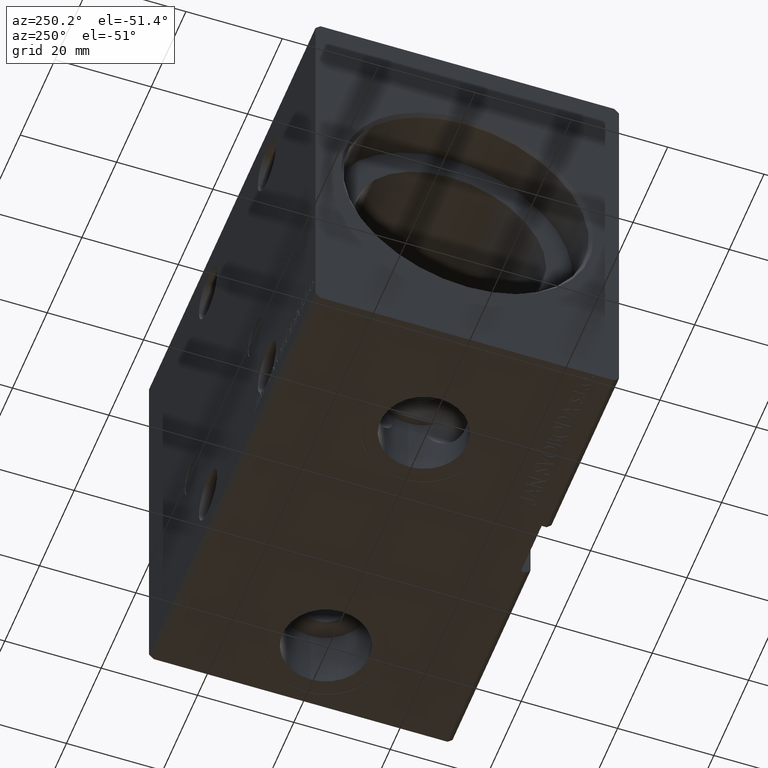
[diagram: clean part render]
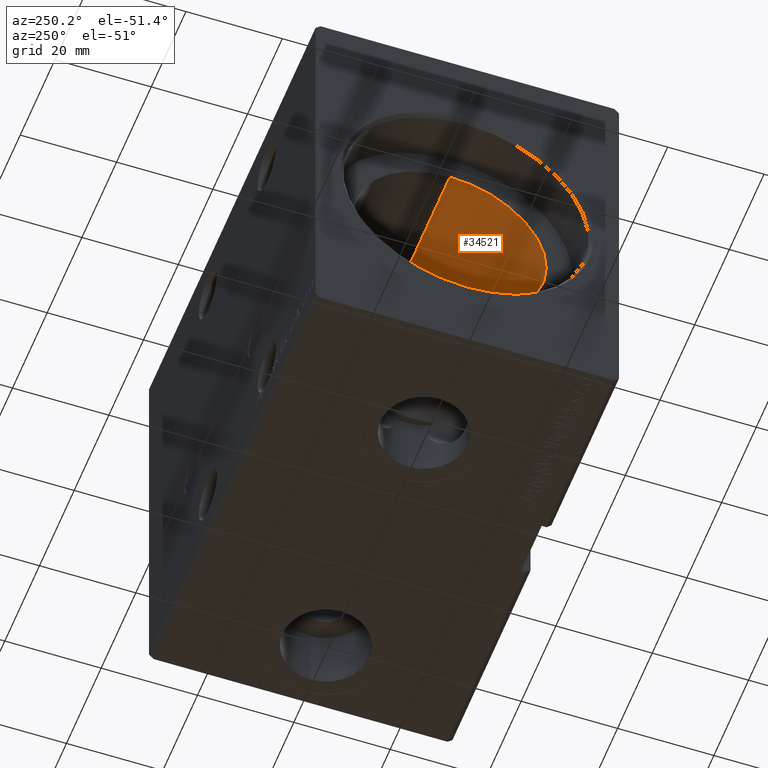
[diagram: same view with one face highlighted and labeled with its STEP entity id]
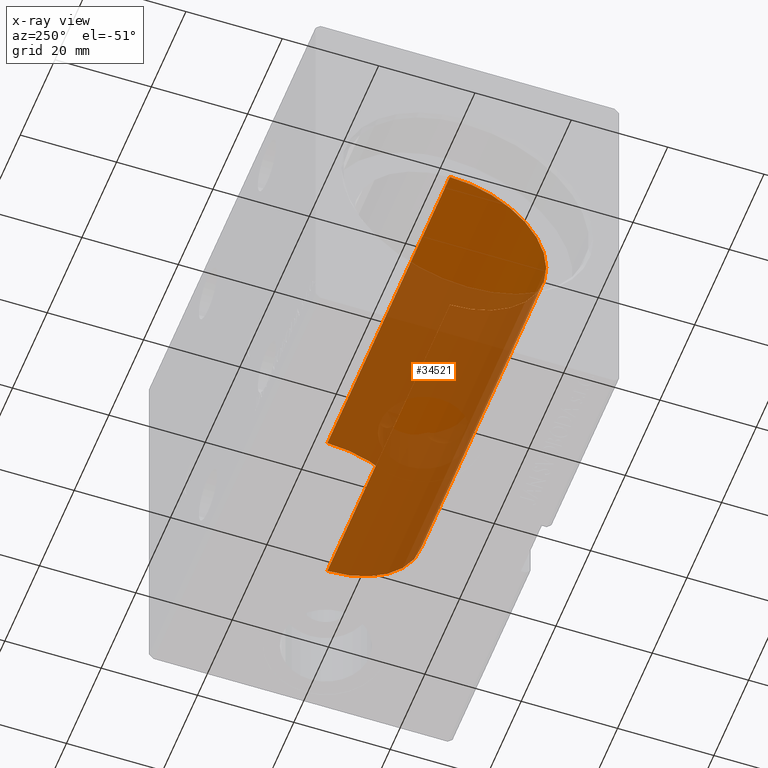
[diagram: x-ray of the same camera — body ghosted, the highlighted face saturated]
A machine part, auxiliary view. The second image highlights one B-rep face of the part: STEP entity #34521.
The next image is the same camera in x-ray: the body ghosted, the highlighted face saturated — about 72% of this face is hidden behind the body in this view.
In plain terms, the highlighted cylindrical surface (partial cylindrical patch) has radius 20 mm, axis along (-1, -0, -0).
Its self-contained STEP definition (entity closure, byte-faithful):
#56 = VECTOR ( 'NONE', #18173, 1000.000000000000000 ) ;
#1644 = CARTESIAN_POINT ( 'NONE',  ( 9.999999999999994671, 0.000000000000000000, 20.00000000000000000 ) ) ;
#2475 = VECTOR ( 'NONE', #5090, 1000.000000000000000 ) ;
#3161 = VERTEX_POINT ( 'NONE', #31922 ) ;
#3589 = DIRECTION ( 'NONE',  ( 0.000000000000000000, 0.000000000000000000, 1.000000000000000000 ) ) ;
#3800 = CIRCLE ( 'NONE', #36202, 20.00000000000000000 ) ;
#5090 = DIRECTION ( 'NONE',  ( -1.000000000000000000, -0.000000000000000000, -0.000000000000000000 ) ) ;
#5919 = FACE_OUTER_BOUND ( 'NONE', #35445, .T. ) ;
#6036 = VERTEX_POINT ( 'NONE', #6403 ) ;
#6403 = CARTESIAN_POINT ( 'NONE',  ( 80.70000000000000284, 2.449293598294706513E-15, -20.00000000000000000 ) ) ;
#7241 = DIRECTION ( 'NONE',  ( -1.000000000000000000, 0.000000000000000000, 0.000000000000000000 ) ) ;
#8202 = LINE ( 'NONE', #10876, #2475 ) ;
#10592 = CARTESIAN_POINT ( 'NONE',  ( 80.70000000000000284, 0.000000000000000000, 0.000000000000000000 ) ) ;
#10876 = CARTESIAN_POINT ( 'NONE',  ( 80.70000000000000284, 2.449293598294706513E-15, -20.00000000000000000 ) ) ;
#12933 = EDGE_CURVE ( 'NONE', #15475, #37934, #3800, .T. ) ;
#15475 = VERTEX_POINT ( 'NONE', #26141 ) ;
#17210 = EDGE_CURVE ( 'NONE', #6036, #15475, #8202, .T. ) ;
#18173 = DIRECTION ( 'NONE',  ( -1.000000000000000000, -0.000000000000000000, -0.000000000000000000 ) ) ;
#18755 = DIRECTION ( 'NONE',  ( -1.000000000000000000, -0.000000000000000000, -0.000000000000000000 ) ) ;
#25763 = EDGE_CURVE ( 'NONE', #6036, #3161, #32408, .T. ) ;
#26135 = DIRECTION ( 'NONE',  ( -1.000000000000000000, 0.000000000000000000, 0.000000000000000000 ) ) ;
#26141 = CARTESIAN_POINT ( 'NONE',  ( 9.999999999999994671, 2.449293598294706513E-15, -20.00000000000000000 ) ) ;
#28068 = CYLINDRICAL_SURFACE ( 'NONE', #38477, 20.00000000000000000 ) ;
#28587 = DIRECTION ( 'NONE',  ( 0.000000000000000000, 0.000000000000000000, 1.000000000000000000 ) ) ;
#31878 = EDGE_CURVE ( 'NONE', #3161, #37934, #33716, .T. ) ;
#31922 = CARTESIAN_POINT ( 'NONE',  ( 80.70000000000000284, 0.000000000000000000, 20.00000000000000000 ) ) ;
#32308 = CARTESIAN_POINT ( 'NONE',  ( 9.999999999999994671, 0.000000000000000000, 0.000000000000000000 ) ) ;
#32408 = CIRCLE ( 'NONE', #39030, 20.00000000000000000 ) ;
#33292 = ORIENTED_EDGE ( 'NONE', *, *, #17210, .T. ) ;
#33716 = LINE ( 'NONE', #36409, #56 ) ;
#34521 = ADVANCED_FACE ( 'NONE', ( #5919 ), #28068, .F. ) ;
#35445 = EDGE_LOOP ( 'NONE', ( #38629, #33292, #36443, #37159 ) ) ;
#35668 = DIRECTION ( 'NONE',  ( 0.000000000000000000, 0.000000000000000000, 1.000000000000000000 ) ) ;
#36202 = AXIS2_PLACEMENT_3D ( 'NONE', #32308, #7241, #28587 ) ;
#36409 = CARTESIAN_POINT ( 'NONE',  ( 80.70000000000000284, 0.000000000000000000, 20.00000000000000000 ) ) ;
#36443 = ORIENTED_EDGE ( 'NONE', *, *, #12933, .T. ) ;
#37159 = ORIENTED_EDGE ( 'NONE', *, *, #31878, .F. ) ;
#37609 = CARTESIAN_POINT ( 'NONE',  ( 80.70000000000000284, 0.000000000000000000, 0.000000000000000000 ) ) ;
#37934 = VERTEX_POINT ( 'NONE', #1644 ) ;
#38477 = AXIS2_PLACEMENT_3D ( 'NONE', #37609, #18755, #35668 ) ;
#38629 = ORIENTED_EDGE ( 'NONE', *, *, #25763, .F. ) ;
#39030 = AXIS2_PLACEMENT_3D ( 'NONE', #10592, #26135, #3589 ) ;